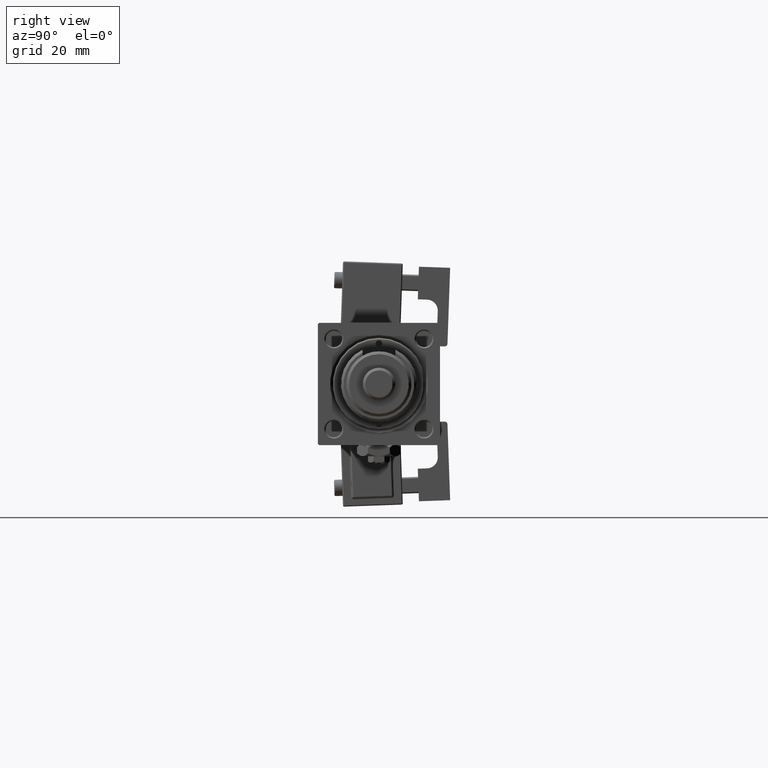
[diagram: clean part render]
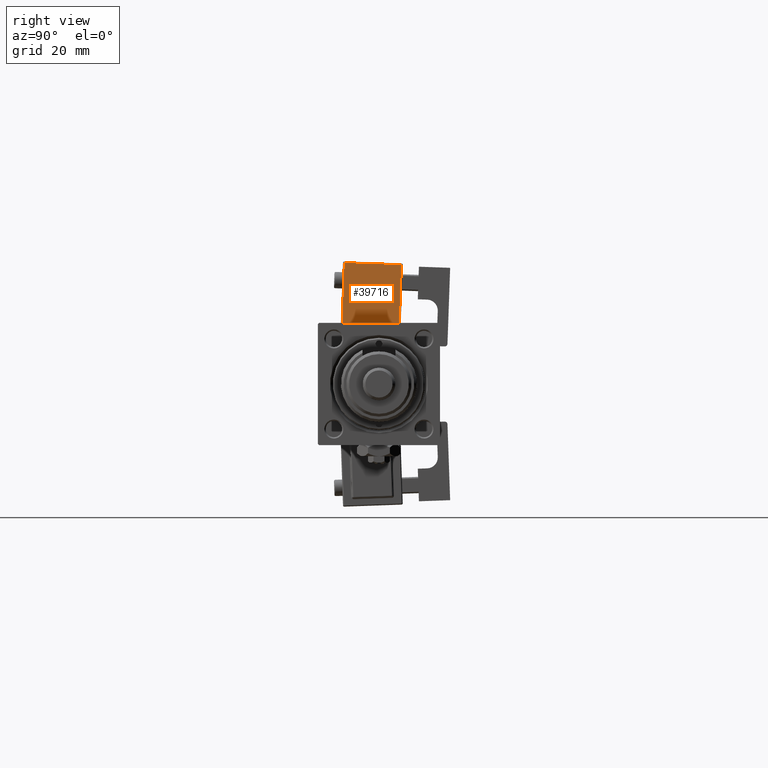
[diagram: same view with one face highlighted and labeled with its STEP entity id]
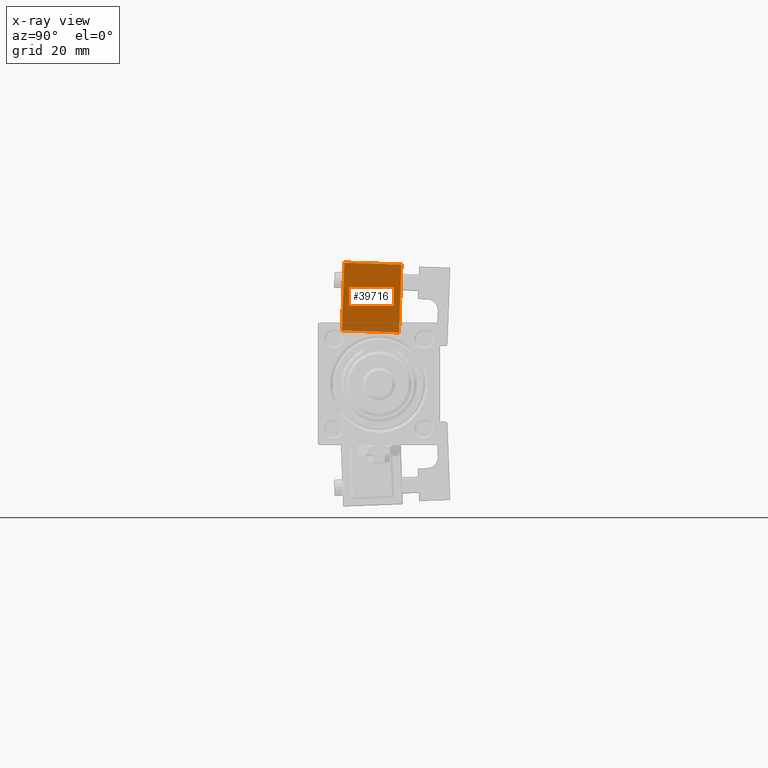
[diagram: x-ray of the same camera — body ghosted, the highlighted face saturated]
A machine part, right view. The second image highlights one B-rep face of the part: STEP entity #39716.
The next image is the same camera in x-ray: the body ghosted, the highlighted face saturated — about 13% of this face is hidden behind the body in this view.
In plain terms, the highlighted planar face has unit normal (-1, 0, 0).
Its self-contained STEP definition (entity closure, byte-faithful):
#1591 = LINE ( 'NONE', #5942, #18917 ) ;
#2841 = LINE ( 'NONE', #17035, #31076 ) ;
#5104 = DIRECTION ( 'NONE',  ( -1.334402673828313093E-16, 0.000000000000000000, -1.000000000000000000 ) ) ;
#5665 = PLANE ( 'NONE',  #56036 ) ;
#5942 = CARTESIAN_POINT ( 'NONE',  ( -8.750000000000003553, -33.75000000000000000, -0.5000000000000004441 ) ) ;
#10857 = CARTESIAN_POINT ( 'NONE',  ( -8.750000000000000000, -33.25000000000000000, 24.50000000000000000 ) ) ;
#10898 = EDGE_CURVE ( 'NONE', #25704, #35682, #2841, .T. ) ;
#11759 = CARTESIAN_POINT ( 'NONE',  ( -8.750000000000003553, -12.25000000000000000, -1.000000000000000888 ) ) ;
#14099 = DIRECTION ( 'NONE',  ( 1.000000000000000000, 0.000000000000000000, -1.334402673828313093E-16 ) ) ;
#15179 = EDGE_CURVE ( 'NONE', #35682, #30891, #51815, .T. ) ;
#16450 = FACE_OUTER_BOUND ( 'NONE', #25940, .T. ) ;
#17035 = CARTESIAN_POINT ( 'NONE',  ( -8.750000000000000000, -33.25000000000000000, 25.00000000000000000 ) ) ;
#17867 = CARTESIAN_POINT ( 'NONE',  ( -8.750000000000000000, -33.75000000000000000, 25.00000000000000000 ) ) ;
#18160 = CARTESIAN_POINT ( 'NONE',  ( -8.750000000000003553, -12.25000000000000000, -0.5000000000000001110 ) ) ;
#18194 = ORIENTED_EDGE ( 'NONE', *, *, #15179, .T. ) ;
#18917 = VECTOR ( 'NONE', #54453, 1000.000000000000000 ) ;
#21675 = DIRECTION ( 'NONE',  ( 1.334402673828313093E-16, -0.000000000000000000, 1.000000000000000000 ) ) ;
#25704 = VERTEX_POINT ( 'NONE', #48489 ) ;
#25940 = EDGE_LOOP ( 'NONE', ( #34392, #18194, #27957, #34694 ) ) ;
#27957 = ORIENTED_EDGE ( 'NONE', *, *, #47444, .T. ) ;
#29479 = DIRECTION ( 'NONE',  ( -1.334402673828313093E-16, 0.000000000000000000, -1.000000000000000000 ) ) ;
#30891 = VERTEX_POINT ( 'NONE', #54832 ) ;
#31076 = VECTOR ( 'NONE', #21675, 1000.000000000000000 ) ;
#32566 = VECTOR ( 'NONE', #29479, 1000.000000000000000 ) ;
#34392 = ORIENTED_EDGE ( 'NONE', *, *, #10898, .T. ) ;
#34694 = ORIENTED_EDGE ( 'NONE', *, *, #53986, .T. ) ;
#35682 = VERTEX_POINT ( 'NONE', #10857 ) ;
#37892 = CARTESIAN_POINT ( 'NONE',  ( -8.750000000000000000, -33.75000000000000000, 24.50000000000000000 ) ) ;
#39716 = ADVANCED_FACE ( 'NONE', ( #16450 ), #5665, .F. ) ;
#47177 = DIRECTION ( 'NONE',  ( 0.000000000000000000, 1.000000000000000000, 0.000000000000000000 ) ) ;
#47444 = EDGE_CURVE ( 'NONE', #30891, #51419, #55917, .T. ) ;
#48489 = CARTESIAN_POINT ( 'NONE',  ( -8.750000000000003553, -33.25000000000000000, -0.5000000000000001110 ) ) ;
#51419 = VERTEX_POINT ( 'NONE', #18160 ) ;
#51815 = LINE ( 'NONE', #37892, #52102 ) ;
#52102 = VECTOR ( 'NONE', #47177, 1000.000000000000000 ) ;
#53986 = EDGE_CURVE ( 'NONE', #51419, #25704, #1591, .T. ) ;
#54453 = DIRECTION ( 'NONE',  ( -0.000000000000000000, -1.000000000000000000, -0.000000000000000000 ) ) ;
#54832 = CARTESIAN_POINT ( 'NONE',  ( -8.750000000000000000, -12.25000000000000000, 24.50000000000000000 ) ) ;
#55917 = LINE ( 'NONE', #11759, #32566 ) ;
#56036 = AXIS2_PLACEMENT_3D ( 'NONE', #17867, #14099, #5104 ) ;